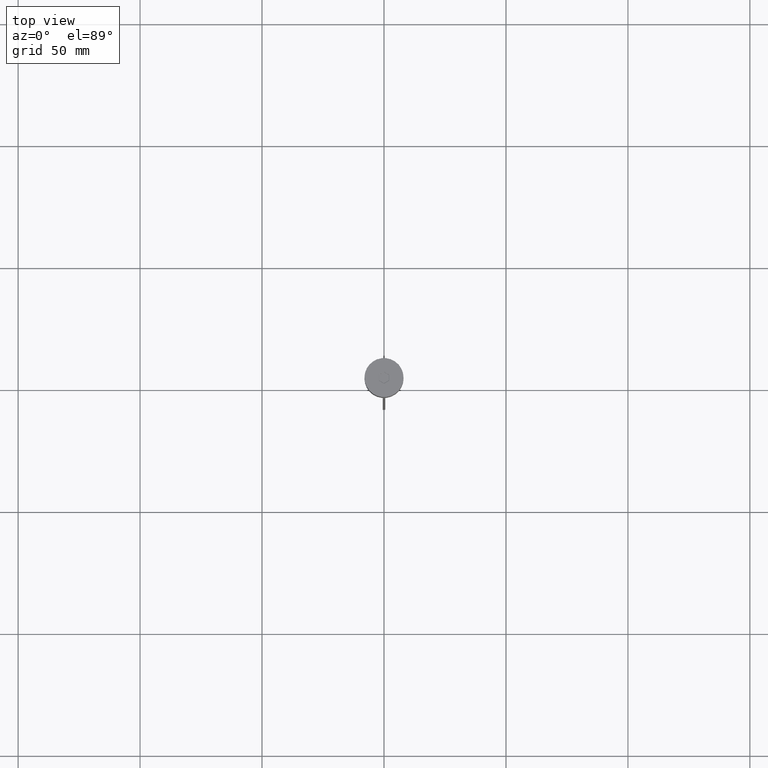
[diagram: clean part render]
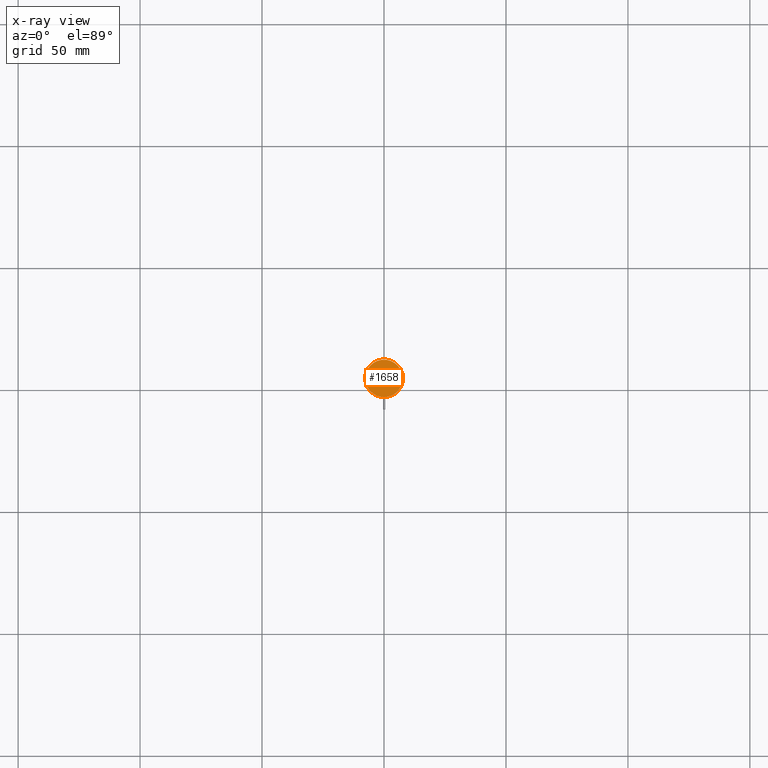
[diagram: x-ray — body ghosted, one internal face saturated and labeled with its STEP entity id]
A machine part, top view, then the same camera in x-ray: the body is ghosted and one INTERNAL B-rep face — a face not visible from any outside direction — is saturated and labeled: STEP entity #1658.
In plain terms, the highlighted planar face has unit normal (0, 0, -1).
Its self-contained STEP definition (entity closure, byte-faithful):
#2 = DIRECTION ( 'NONE',  ( 0.000000000000000000, 0.000000000000000000, -1.000000000000000000 ) ) ;
#11 = FACE_OUTER_BOUND ( 'NONE', #2007, .T. ) ;
#33 = CARTESIAN_POINT ( 'NONE',  ( 0.000000000000000000, 0.000000000000000000, -19.99999999999999645 ) ) ;
#205 = DIRECTION ( 'NONE',  ( -0.000000000000000000, -0.000000000000000000, 1.000000000000000000 ) ) ;
#338 = CARTESIAN_POINT ( 'NONE',  ( -7.700000000000001954, 0.000000000000000000, -19.99999999999999645 ) ) ;
#350 = DIRECTION ( 'NONE',  ( -1.000000000000000000, 0.000000000000000000, 0.000000000000000000 ) ) ;
#440 = CARTESIAN_POINT ( 'NONE',  ( 0.000000000000000000, 0.000000000000000000, -19.99999999999999645 ) ) ;
#443 = CIRCLE ( 'NONE', #857, 7.700000000000001954 ) ;
#458 = CARTESIAN_POINT ( 'NONE',  ( 7.700000000000001954, 9.613477373306725302E-16, -19.99999999999999645 ) ) ;
#485 = DIRECTION ( 'NONE',  ( -1.000000000000000000, 0.000000000000000000, -0.000000000000000000 ) ) ;
#609 = ORIENTED_EDGE ( 'NONE', *, *, #697, .T. ) ;
#697 = EDGE_CURVE ( 'NONE', #1051, #1975, #1562, .T. ) ;
#709 = ORIENTED_EDGE ( 'NONE', *, *, #1059, .T. ) ;
#857 = AXIS2_PLACEMENT_3D ( 'NONE', #440, #1390, #1746 ) ;
#1051 = VERTEX_POINT ( 'NONE', #458 ) ;
#1059 = EDGE_CURVE ( 'NONE', #1975, #1051, #443, .T. ) ;
#1306 = CARTESIAN_POINT ( 'NONE',  ( 0.000000000000000000, 0.000000000000000000, -19.99999999999999645 ) ) ;
#1390 = DIRECTION ( 'NONE',  ( -0.000000000000000000, -0.000000000000000000, 1.000000000000000000 ) ) ;
#1562 = CIRCLE ( 'NONE', #1895, 7.700000000000001954 ) ;
#1658 = ADVANCED_FACE ( 'NONE', ( #11 ), #1931, .F. ) ;
#1746 = DIRECTION ( 'NONE',  ( -1.000000000000000000, 0.000000000000000000, 0.000000000000000000 ) ) ;
#1870 = AXIS2_PLACEMENT_3D ( 'NONE', #33, #2, #485 ) ;
#1895 = AXIS2_PLACEMENT_3D ( 'NONE', #1306, #205, #350 ) ;
#1931 = PLANE ( 'NONE',  #1870 ) ;
#1975 = VERTEX_POINT ( 'NONE', #338 ) ;
#2007 = EDGE_LOOP ( 'NONE', ( #709, #609 ) ) ;